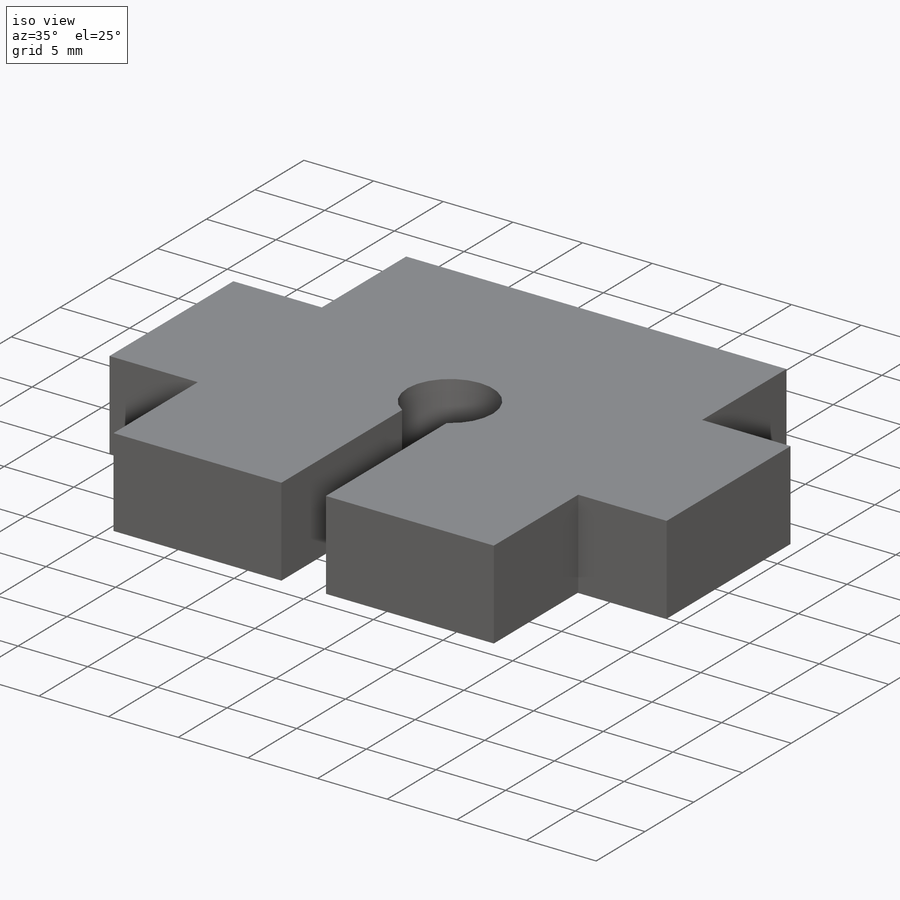
[diagram: iso view]
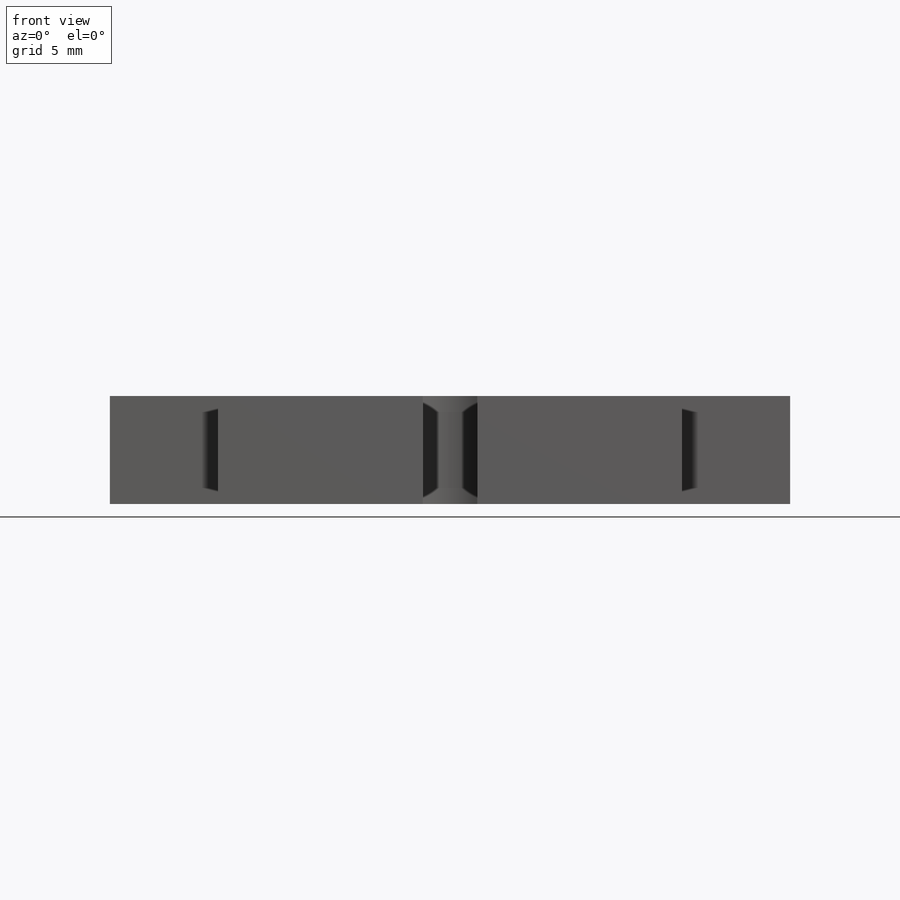
[diagram: front view]
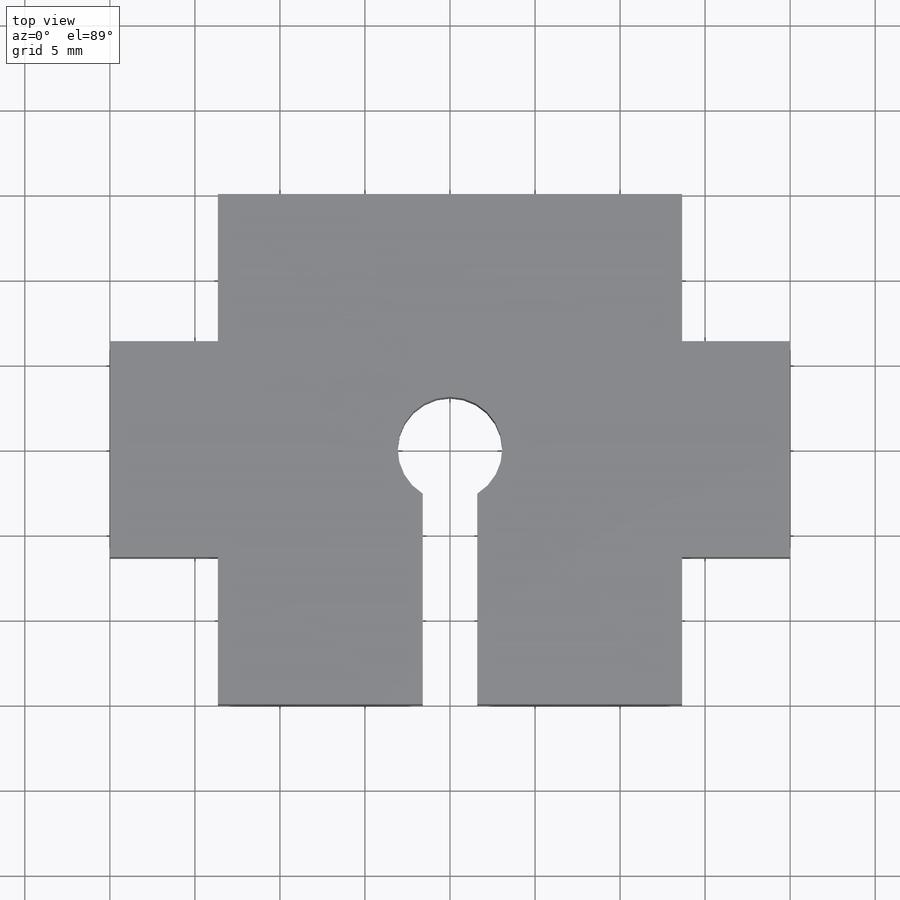
[diagram: top view]
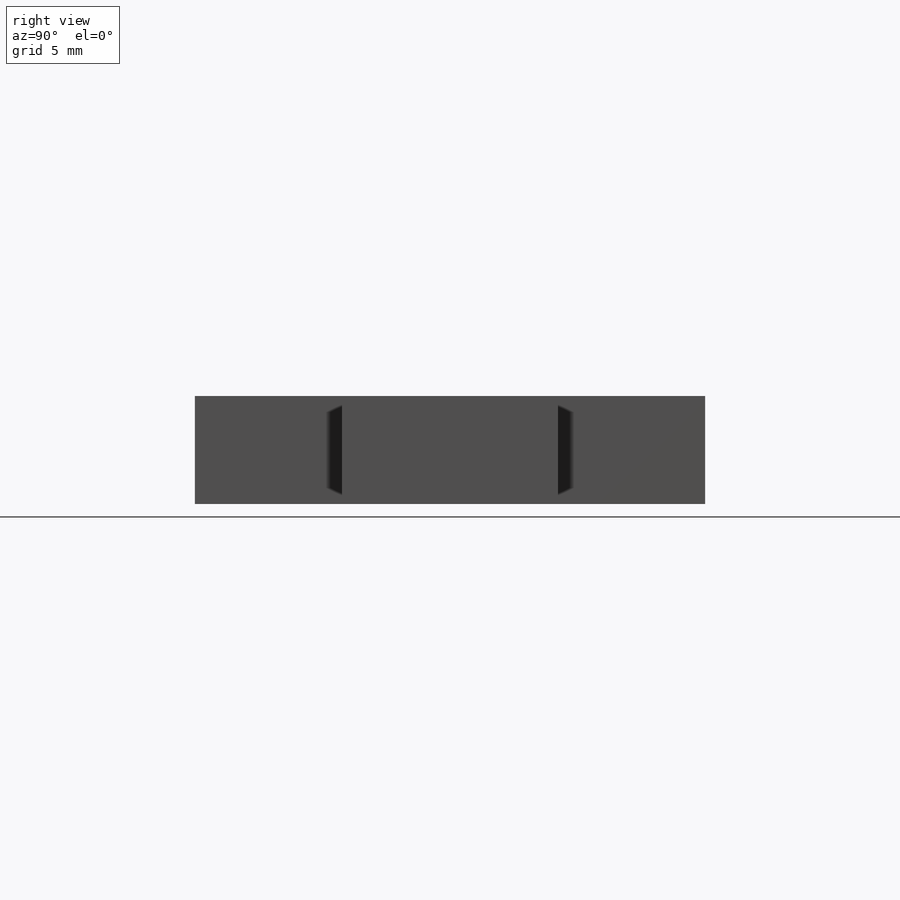
[diagram: right view]
SOLIDWORKS PART (.sldprt)
format: sldprt  version: not decoded by parser v0  size: 197,120 bytes
history: native  units: mm
features: sketch x4, extrude x2, cut_extrude x2, material x1, mirror x1 (+13 scaffold rows collapsed)
feature tree (23):
  scaffold x13  (default folders/planes/origin — collapsed)
  material  "Acrylic (Medium-high impact)"
  sketch  "Sketch2"  dims[c1.D1=~96.642542mm c1.D2=~151.938017mm c2.D1=27.3mm c2.D2=30.0mm]
  extrude  "Boss-Extrude1"  Depth=6.35mm
  sketch  "Sketch3"  dims[c1.D1=~2.854931mm c1.D2=~10.328132mm c2.D1=0.0mm c2.D2=0.0mm c2.D3=12.7mm c2.D4=15.0mm]
  extrude  "Boss-Extrude2"  Depth=6.35mm
  mirror  "Mirror1"
  sketch  "Sketch4"  dims[D1=6.15mm]
  cut_extrude  "Cut-Extrude1"  [1 undecoded]
  sketch  "Sketch5"  dims[c1.D1=~3.526679mm c1.D2=~2.267151mm c2.D1=0.0mm c2.D2=0.0mm c2.D3=13.65mm c2.D4=3.2mm]
  cut_extrude  "Cut-Extrude2"  [1 undecoded]
decode coverage: 6 of 9 modeling features carry decoded parameters
note: ~ marks probable driven/reference dimensions
note: 2 parameter values undecoded
note: suppression state not decoded; provenance and decode notes live in map.json
